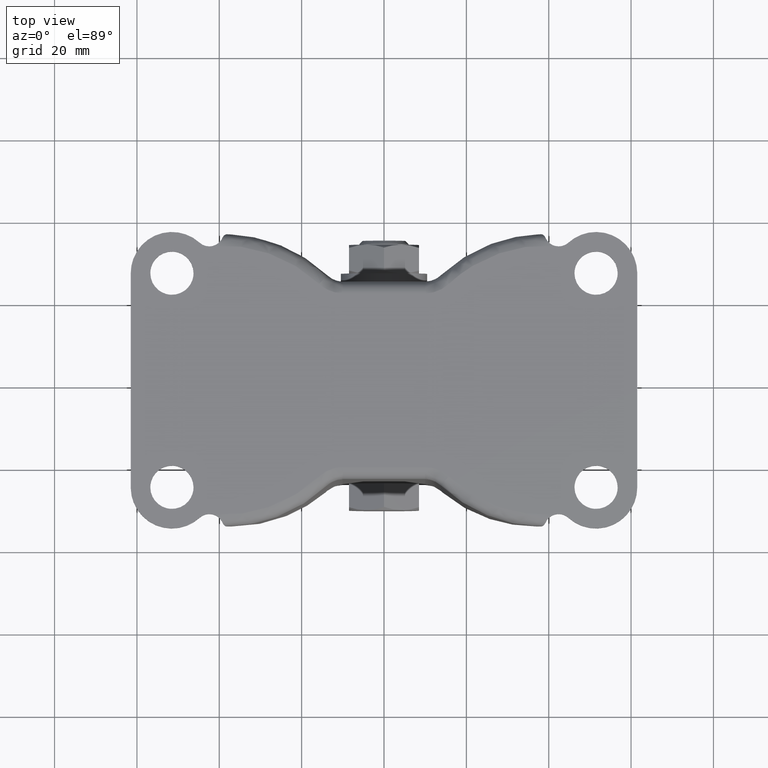
[diagram: clean part render]
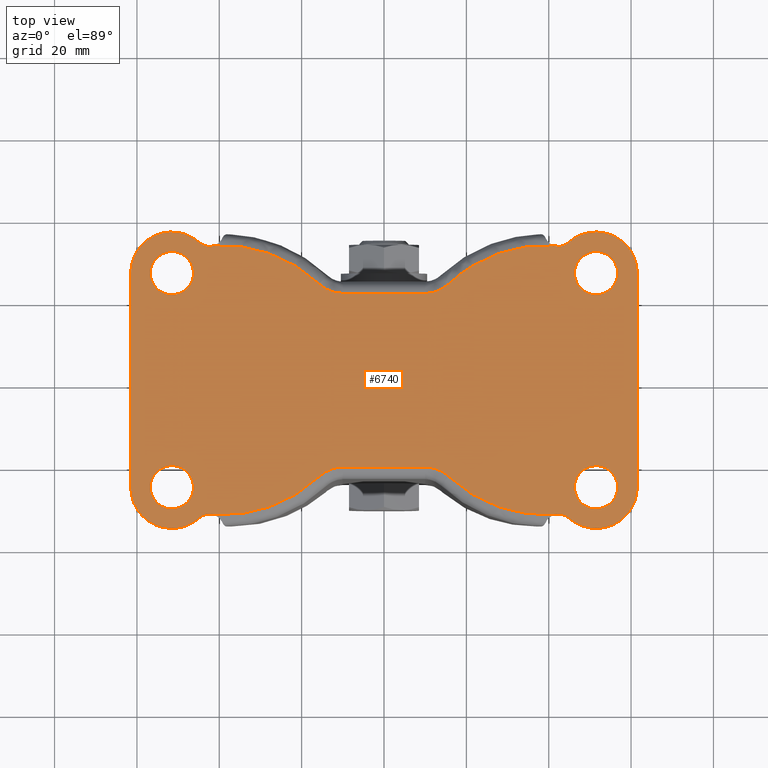
[diagram: same view with one face highlighted and labeled with its STEP entity id]
A machine part, top view. The second image highlights one B-rep face of the part: STEP entity #6740.
In plain terms, the highlighted face is a freeform B-spline surface patch.
Its self-contained STEP definition (entity closure, byte-faithful):
#2383=CARTESIAN_POINT('',(-51.820504832809867,20.759792308300600,1.318390E-016));
#2384=VERTEX_POINT('',#2383);
#2385=CARTESIAN_POINT('',(-46.250000000000000,26.0,0.0));
#2386=VERTEX_POINT('',#2385);
#2387=CARTESIAN_POINT('',(-51.820504832809881,20.759792308300604,0.0));
#2388=CARTESIAN_POINT('',(-51.660402007443885,20.749999999999996,0.0));
#2389=CARTESIAN_POINT('',(-51.500000000000000,20.750000000000000,0.0));
#2390=CARTESIAN_POINT('',(-46.249999999999993,20.750000000000000,0.0));
#2391=CARTESIAN_POINT('',(-46.250000000000000,26.0,0.0));
#2399=(BOUNDED_CURVE()B_SPLINE_CURVE(2,(#2387,#2388,#2389,#2390,#2391),.UNSPECIFIED.,.F.,.U.)B_SPLINE_CURVE_WITH_KNOTS((3,2,3),(0.239332962233675,0.250000000000000,0.500000000000000),.UNSPECIFIED.)CURVE()GEOMETRIC_REPRESENTATION_ITEM()RATIONAL_B_SPLINE_CURVE((0.976072041655427,0.987502787893665,1.0,0.707106781186547,1.0))REPRESENTATION_ITEM(''));
#2400=EDGE_CURVE('',#2384,#2386,#2399,.T.);
#2402=CARTESIAN_POINT('',(-51.179495167190133,31.240207691699400,1.318390E-016));
#2403=VERTEX_POINT('',#2402);
#2404=CARTESIAN_POINT('',(-46.250000000000000,26.0,0.0));
#2405=CARTESIAN_POINT('',(-46.250000000000000,30.938706851017070,0.0));
#2406=CARTESIAN_POINT('',(-51.179495167190126,31.240207691699403,0.0));
#2414=(BOUNDED_CURVE()B_SPLINE_CURVE(2,(#2404,#2405,#2406),.UNSPECIFIED.,.F.,.U.)B_SPLINE_CURVE_WITH_KNOTS((3,3),(0.500000000000000,0.739332962233675),.UNSPECIFIED.)CURVE()GEOMETRIC_REPRESENTATION_ITEM()RATIONAL_B_SPLINE_CURVE((1.0,0.719603993292882,0.976072041655427))REPRESENTATION_ITEM(''));
#2415=EDGE_CURVE('',#2386,#2403,#2414,.T.);
#2482=CARTESIAN_POINT('',(-56.749999999999993,26.0,0.0));
#2483=VERTEX_POINT('',#2482);
#2484=CARTESIAN_POINT('',(-56.749999999999993,26.0,0.0));
#2485=CARTESIAN_POINT('',(-56.749999999999979,21.061293148982934,0.0));
#2486=CARTESIAN_POINT('',(-51.820504832809881,20.759792308300604,0.0));
#2494=(BOUNDED_CURVE()B_SPLINE_CURVE(2,(#2484,#2485,#2486),.UNSPECIFIED.,.F.,.U.)B_SPLINE_CURVE_WITH_KNOTS((3,3),(0.0,0.239332962233675),.UNSPECIFIED.)CURVE()GEOMETRIC_REPRESENTATION_ITEM()RATIONAL_B_SPLINE_CURVE((1.0,0.719603993292882,0.976072041655427))REPRESENTATION_ITEM(''));
#2495=EDGE_CURVE('',#2483,#2384,#2494,.T.);
#2529=CARTESIAN_POINT('',(-51.179495167190140,31.240207691699403,0.0));
#2530=CARTESIAN_POINT('',(-51.339597992556122,31.250000000000000,0.0));
#2531=CARTESIAN_POINT('',(-51.500000000000000,31.250000000000000,0.0));
#2532=CARTESIAN_POINT('',(-56.749999999999993,31.250000000000004,0.0));
#2533=CARTESIAN_POINT('',(-56.749999999999993,26.0,0.0));
#2541=(BOUNDED_CURVE()B_SPLINE_CURVE(2,(#2529,#2530,#2531,#2532,#2533),.UNSPECIFIED.,.F.,.U.)B_SPLINE_CURVE_WITH_KNOTS((3,2,3),(0.739332962233675,0.750000000000000,1.0),.UNSPECIFIED.)CURVE()GEOMETRIC_REPRESENTATION_ITEM()RATIONAL_B_SPLINE_CURVE((0.976072041655427,0.987502787893665,1.0,0.707106781186547,1.0))REPRESENTATION_ITEM(''));
#2542=EDGE_CURVE('',#2403,#2483,#2541,.T.);
#2565=CARTESIAN_POINT('',(-51.820504832809867,-31.240207691699400,1.318390E-016));
#2566=VERTEX_POINT('',#2565);
#2567=CARTESIAN_POINT('',(-46.250000000000000,-26.0,0.0));
#2568=VERTEX_POINT('',#2567);
#2569=CARTESIAN_POINT('',(-51.820504832809867,-31.240207691699403,0.0));
#2570=CARTESIAN_POINT('',(-51.660402007443878,-31.250000000000000,0.0));
#2571=CARTESIAN_POINT('',(-51.500000000000000,-31.250000000000000,0.0));
#2572=CARTESIAN_POINT('',(-46.249999999999993,-31.250000000000004,0.0));
#2573=CARTESIAN_POINT('',(-46.250000000000000,-26.0,0.0));
#2581=(BOUNDED_CURVE()B_SPLINE_CURVE(2,(#2569,#2570,#2571,#2572,#2573),.UNSPECIFIED.,.F.,.U.)B_SPLINE_CURVE_WITH_KNOTS((3,2,3),(0.239332962233675,0.250000000000000,0.500000000000000),.UNSPECIFIED.)CURVE()GEOMETRIC_REPRESENTATION_ITEM()RATIONAL_B_SPLINE_CURVE((0.976072041655427,0.987502787893665,1.0,0.707106781186547,1.0))REPRESENTATION_ITEM(''));
#2582=EDGE_CURVE('',#2566,#2568,#2581,.T.);
#2584=CARTESIAN_POINT('',(-51.179495167190133,-20.759792308300600,1.318390E-016));
#2585=VERTEX_POINT('',#2584);
#2586=CARTESIAN_POINT('',(-46.250000000000000,-26.0,0.0));
#2587=CARTESIAN_POINT('',(-46.250000000000000,-21.061293148982930,0.0));
#2588=CARTESIAN_POINT('',(-51.179495167190126,-20.759792308300611,0.0));
#2596=(BOUNDED_CURVE()B_SPLINE_CURVE(2,(#2586,#2587,#2588),.UNSPECIFIED.,.F.,.U.)B_SPLINE_CURVE_WITH_KNOTS((3,3),(0.500000000000000,0.739332962233675),.UNSPECIFIED.)CURVE()GEOMETRIC_REPRESENTATION_ITEM()RATIONAL_B_SPLINE_CURVE((1.0,0.719603993292882,0.976072041655427))REPRESENTATION_ITEM(''));
#2597=EDGE_CURVE('',#2568,#2585,#2596,.T.);
#2664=CARTESIAN_POINT('',(-56.749999999999993,-26.0,0.0));
#2665=VERTEX_POINT('',#2664);
#2666=CARTESIAN_POINT('',(-56.749999999999993,-26.0,0.0));
#2667=CARTESIAN_POINT('',(-56.749999999999979,-30.938706851017077,0.0));
#2668=CARTESIAN_POINT('',(-51.820504832809867,-31.240207691699403,0.0));
#2676=(BOUNDED_CURVE()B_SPLINE_CURVE(2,(#2666,#2667,#2668),.UNSPECIFIED.,.F.,.U.)B_SPLINE_CURVE_WITH_KNOTS((3,3),(0.0,0.239332962233675),.UNSPECIFIED.)CURVE()GEOMETRIC_REPRESENTATION_ITEM()RATIONAL_B_SPLINE_CURVE((1.0,0.719603993292882,0.976072041655427))REPRESENTATION_ITEM(''));
#2677=EDGE_CURVE('',#2665,#2566,#2676,.T.);
#2711=CARTESIAN_POINT('',(-51.179495167190126,-20.759792308300611,0.0));
#2712=CARTESIAN_POINT('',(-51.339597992556115,-20.749999999999996,0.0));
#2713=CARTESIAN_POINT('',(-51.500000000000000,-20.750000000000000,0.0));
#2714=CARTESIAN_POINT('',(-56.749999999999993,-20.750000000000000,0.0));
#2715=CARTESIAN_POINT('',(-56.749999999999993,-26.0,0.0));
#2723=(BOUNDED_CURVE()B_SPLINE_CURVE(2,(#2711,#2712,#2713,#2714,#2715),.UNSPECIFIED.,.F.,.U.)B_SPLINE_CURVE_WITH_KNOTS((3,2,3),(0.739332962233675,0.750000000000000,1.0),.UNSPECIFIED.)CURVE()GEOMETRIC_REPRESENTATION_ITEM()RATIONAL_B_SPLINE_CURVE((0.976072041655427,0.987502787893665,1.0,0.707106781186547,1.0))REPRESENTATION_ITEM(''));
#2724=EDGE_CURVE('',#2585,#2665,#2723,.T.);
#2747=CARTESIAN_POINT('',(51.179495167190119,20.759792308300600,1.318390E-016));
#2748=VERTEX_POINT('',#2747);
#2749=CARTESIAN_POINT('',(56.749999999999993,26.0,0.0));
#2750=VERTEX_POINT('',#2749);
#2751=CARTESIAN_POINT('',(51.179495167190119,20.759792308300604,0.0));
#2752=CARTESIAN_POINT('',(51.339597992556115,20.750000000000004,0.0));
#2753=CARTESIAN_POINT('',(51.500000000000000,20.750000000000000,0.0));
#2754=CARTESIAN_POINT('',(56.749999999999993,20.750000000000000,0.0));
#2755=CARTESIAN_POINT('',(56.749999999999993,26.0,0.0));
#2763=(BOUNDED_CURVE()B_SPLINE_CURVE(2,(#2751,#2752,#2753,#2754,#2755),.UNSPECIFIED.,.F.,.U.)B_SPLINE_CURVE_WITH_KNOTS((3,2,3),(0.239332962233675,0.250000000000000,0.500000000000000),.UNSPECIFIED.)CURVE()GEOMETRIC_REPRESENTATION_ITEM()RATIONAL_B_SPLINE_CURVE((0.976072041655426,0.987502787893665,1.0,0.707106781186547,1.0))REPRESENTATION_ITEM(''));
#2764=EDGE_CURVE('',#2748,#2750,#2763,.T.);
#2766=CARTESIAN_POINT('',(51.820504832809867,31.240207691699400,1.318390E-016));
#2767=VERTEX_POINT('',#2766);
#2768=CARTESIAN_POINT('',(56.749999999999993,26.0,0.0));
#2769=CARTESIAN_POINT('',(56.749999999999972,30.938706851017070,0.0));
#2770=CARTESIAN_POINT('',(51.820504832809881,31.240207691699403,0.0));
#2778=(BOUNDED_CURVE()B_SPLINE_CURVE(2,(#2768,#2769,#2770),.UNSPECIFIED.,.F.,.U.)B_SPLINE_CURVE_WITH_KNOTS((3,3),(0.500000000000000,0.739332962233675),.UNSPECIFIED.)CURVE()GEOMETRIC_REPRESENTATION_ITEM()RATIONAL_B_SPLINE_CURVE((1.0,0.719603993292882,0.976072041655427))REPRESENTATION_ITEM(''));
#2779=EDGE_CURVE('',#2750,#2767,#2778,.T.);
#2846=CARTESIAN_POINT('',(46.250000000000000,26.0,0.0));
#2847=VERTEX_POINT('',#2846);
#2848=CARTESIAN_POINT('',(46.250000000000000,26.0,0.0));
#2849=CARTESIAN_POINT('',(46.250000000000000,21.061293148982930,0.0));
#2850=CARTESIAN_POINT('',(51.179495167190133,20.759792308300600,0.0));
#2858=(BOUNDED_CURVE()B_SPLINE_CURVE(2,(#2848,#2849,#2850),.UNSPECIFIED.,.F.,.U.)B_SPLINE_CURVE_WITH_KNOTS((3,3),(0.0,0.239332962233675),.UNSPECIFIED.)CURVE()GEOMETRIC_REPRESENTATION_ITEM()RATIONAL_B_SPLINE_CURVE((1.0,0.719603993292882,0.976072041655427))REPRESENTATION_ITEM(''));
#2859=EDGE_CURVE('',#2847,#2748,#2858,.T.);
#2893=CARTESIAN_POINT('',(51.820504832809867,31.240207691699403,0.0));
#2894=CARTESIAN_POINT('',(51.660402007443878,31.250000000000000,0.0));
#2895=CARTESIAN_POINT('',(51.500000000000000,31.250000000000000,0.0));
#2896=CARTESIAN_POINT('',(46.249999999999993,31.250000000000004,0.0));
#2897=CARTESIAN_POINT('',(46.250000000000000,26.0,0.0));
#2905=(BOUNDED_CURVE()B_SPLINE_CURVE(2,(#2893,#2894,#2895,#2896,#2897),.UNSPECIFIED.,.F.,.U.)B_SPLINE_CURVE_WITH_KNOTS((3,2,3),(0.739332962233675,0.750000000000000,1.0),.UNSPECIFIED.)CURVE()GEOMETRIC_REPRESENTATION_ITEM()RATIONAL_B_SPLINE_CURVE((0.976072041655427,0.987502787893665,1.0,0.707106781186547,1.0))REPRESENTATION_ITEM(''));
#2906=EDGE_CURVE('',#2767,#2847,#2905,.T.);
#2929=CARTESIAN_POINT('',(51.179495167190119,-31.240207691699400,1.318390E-016));
#2930=VERTEX_POINT('',#2929);
#2931=CARTESIAN_POINT('',(56.749999999999993,-26.0,0.0));
#2932=VERTEX_POINT('',#2931);
#2933=CARTESIAN_POINT('',(51.179495167190140,-31.240207691699400,0.0));
#2934=CARTESIAN_POINT('',(51.339597992556122,-31.249999999999996,0.0));
#2935=CARTESIAN_POINT('',(51.500000000000000,-31.250000000000000,0.0));
#2936=CARTESIAN_POINT('',(56.749999999999993,-31.250000000000004,0.0));
#2937=CARTESIAN_POINT('',(56.749999999999993,-26.0,0.0));
#2945=(BOUNDED_CURVE()B_SPLINE_CURVE(2,(#2933,#2934,#2935,#2936,#2937),.UNSPECIFIED.,.F.,.U.)B_SPLINE_CURVE_WITH_KNOTS((3,2,3),(0.239332962233675,0.250000000000000,0.500000000000000),.UNSPECIFIED.)CURVE()GEOMETRIC_REPRESENTATION_ITEM()RATIONAL_B_SPLINE_CURVE((0.976072041655426,0.987502787893665,1.0,0.707106781186547,1.0))REPRESENTATION_ITEM(''));
#2946=EDGE_CURVE('',#2930,#2932,#2945,.T.);
#2948=CARTESIAN_POINT('',(51.820504832809867,-20.759792308300600,1.318390E-016));
#2949=VERTEX_POINT('',#2948);
#2950=CARTESIAN_POINT('',(56.749999999999993,-26.0,0.0));
#2951=CARTESIAN_POINT('',(56.749999999999972,-21.061293148982930,0.0));
#2952=CARTESIAN_POINT('',(51.820504832809881,-20.759792308300611,0.0));
#2960=(BOUNDED_CURVE()B_SPLINE_CURVE(2,(#2950,#2951,#2952),.UNSPECIFIED.,.F.,.U.)B_SPLINE_CURVE_WITH_KNOTS((3,3),(0.500000000000000,0.739332962233675),.UNSPECIFIED.)CURVE()GEOMETRIC_REPRESENTATION_ITEM()RATIONAL_B_SPLINE_CURVE((1.0,0.719603993292882,0.976072041655427))REPRESENTATION_ITEM(''));
#2961=EDGE_CURVE('',#2932,#2949,#2960,.T.);
#3028=CARTESIAN_POINT('',(46.250000000000000,-26.0,0.0));
#3029=VERTEX_POINT('',#3028);
#3030=CARTESIAN_POINT('',(46.250000000000000,-26.0,0.0));
#3031=CARTESIAN_POINT('',(46.250000000000000,-30.938706851017066,0.0));
#3032=CARTESIAN_POINT('',(51.179495167190140,-31.240207691699400,0.0));
#3040=(BOUNDED_CURVE()B_SPLINE_CURVE(2,(#3030,#3031,#3032),.UNSPECIFIED.,.F.,.U.)B_SPLINE_CURVE_WITH_KNOTS((3,3),(0.0,0.239332962233675),.UNSPECIFIED.)CURVE()GEOMETRIC_REPRESENTATION_ITEM()RATIONAL_B_SPLINE_CURVE((1.0,0.719603993292882,0.976072041655426))REPRESENTATION_ITEM(''));
#3041=EDGE_CURVE('',#3029,#2930,#3040,.T.);
#3075=CARTESIAN_POINT('',(51.820504832809867,-20.759792308300604,0.0));
#3076=CARTESIAN_POINT('',(51.660402007443878,-20.749999999999996,0.0));
#3077=CARTESIAN_POINT('',(51.500000000000000,-20.750000000000000,0.0));
#3078=CARTESIAN_POINT('',(46.249999999999993,-20.750000000000000,0.0));
#3079=CARTESIAN_POINT('',(46.250000000000000,-26.0,0.0));
#3087=(BOUNDED_CURVE()B_SPLINE_CURVE(2,(#3075,#3076,#3077,#3078,#3079),.UNSPECIFIED.,.F.,.U.)B_SPLINE_CURVE_WITH_KNOTS((3,2,3),(0.739332962233675,0.750000000000000,1.0),.UNSPECIFIED.)CURVE()GEOMETRIC_REPRESENTATION_ITEM()RATIONAL_B_SPLINE_CURVE((0.976072041655427,0.987502787893665,1.0,0.707106781186547,1.0))REPRESENTATION_ITEM(''));
#3088=EDGE_CURVE('',#2949,#3029,#3087,.T.);
#4068=CARTESIAN_POINT('',(-61.500000000000000,-26.0,0.0));
#4069=VERTEX_POINT('',#4068);
#4070=CARTESIAN_POINT('',(-44.782090500815002,-33.407407390839403,0.0));
#4071=VERTEX_POINT('',#4070);
#4072=CARTESIAN_POINT('',(-61.500000000000000,-26.0,0.0));
#4073=CARTESIAN_POINT('',(-61.500398466991641,-26.991521464954801,0.0));
#4074=CARTESIAN_POINT('',(-61.274743914934170,-28.493468587668609,0.0));
#4075=CARTESIAN_POINT('',(-60.525822072085901,-30.400790700698220,0.0));
#4076=CARTESIAN_POINT('',(-59.822728471220032,-31.595904799884519,0.0));
#4077=CARTESIAN_POINT('',(-58.879134221229911,-32.805586696100157,0.0));
#4078=CARTESIAN_POINT('',(-57.784470126972572,-33.845139797911052,0.0));
#4079=CARTESIAN_POINT('',(-56.301119822848342,-34.825117580906010,0.0));
#4080=CARTESIAN_POINT('',(-54.922100953797347,-35.436105818748651,0.0));
#4081=CARTESIAN_POINT('',(-53.268044072261212,-35.891039993520792,0.0));
#4082=CARTESIAN_POINT('',(-51.614493909470987,-36.059674033107143,0.0));
#4083=CARTESIAN_POINT('',(-49.572525274457547,-35.880203071400317,0.0));
#4084=CARTESIAN_POINT('',(-47.831163044045489,-35.368292805564863,0.0));
#4085=CARTESIAN_POINT('',(-46.143780749048162,-34.499803943779263,0.0));
#4086=CARTESIAN_POINT('',(-45.249391280311841,-33.831308928272414,0.0));
#4087=CARTESIAN_POINT('',(-44.782090500815002,-33.407407390839403,0.0));
#4088=B_SPLINE_CURVE_WITH_KNOTS('',3,(#4072,#4073,#4074,#4075,#4076,#4077,#4078,#4079,#4080,#4081,#4082,#4083,#4084,#4085,#4086,#4087),.UNSPECIFIED.,.F.,.U.,(4,1,1,1,1,1,1,1,1,1,1,1,1,4),(0.000000072688191,2.974409539399606,4.506680842081142,6.129109343518056,7.120597783297692,9.103528682393405,10.635864247580891,12.438421431263830,13.610171432831590,15.773432334682820,17.395846362430600,19.739358620826511,21.181520612456019,23.074280991551731),.UNSPECIFIED.);
#4089=EDGE_CURVE('',#4069,#4071,#4088,.T.);
#4184=CARTESIAN_POINT('',(-41.530390479089498,-32.617807948068247,0.0));
#4185=VERTEX_POINT('',#4184);
#4200=CARTESIAN_POINT('',(-41.530390479089469,-32.617807948068148,0.0));
#4201=CARTESIAN_POINT('',(-43.371105181389041,-32.127759626297944,0.0));
#4202=CARTESIAN_POINT('',(-44.782090500815052,-33.407407390839339,0.0));
#4210=(BOUNDED_CURVE()B_SPLINE_CURVE(2,(#4200,#4201,#4202),.UNSPECIFIED.,.F.,.U.)CURVE()GEOMETRIC_REPRESENTATION_ITEM()QUASI_UNIFORM_CURVE()RATIONAL_B_SPLINE_CURVE((1.0,0.878344682571564,1.0))REPRESENTATION_ITEM(''));
#4211=EDGE_CURVE('',#4185,#4071,#4210,.T.);
#4235=CARTESIAN_POINT('',(-44.782089997670951,33.407407454744998,0.0));
#4236=VERTEX_POINT('',#4235);
#4237=CARTESIAN_POINT('',(-61.500000000000000,26.0,0.0));
#4238=VERTEX_POINT('',#4237);
#4239=CARTESIAN_POINT('',(-44.782089997670951,33.407407454744998,0.0));
#4240=CARTESIAN_POINT('',(-45.405083122775373,33.972759740858919,0.0));
#4241=CARTESIAN_POINT('',(-46.546795683425870,34.770904828055258,0.0));
#4242=CARTESIAN_POINT('',(-48.432246184779338,35.575074712582762,0.0));
#4243=CARTESIAN_POINT('',(-50.140102571989289,35.962114730231761,0.0));
#4244=CARTESIAN_POINT('',(-51.826639198604738,36.033944633906380,0.0));
#4245=CARTESIAN_POINT('',(-53.203812665395709,35.880933207224132,0.0));
#4246=CARTESIAN_POINT('',(-54.519981838451720,35.563246633610547,0.0));
#4247=CARTESIAN_POINT('',(-56.066703810751910,34.967972435864489,0.0));
#4248=CARTESIAN_POINT('',(-57.475183742917302,34.082347561688728,0.0));
#4249=CARTESIAN_POINT('',(-58.660712729828177,33.015742099594583,0.0));
#4250=CARTESIAN_POINT('',(-59.511210380519863,32.039347686287933,0.0));
#4251=CARTESIAN_POINT('',(-60.234054311130038,30.928400481849280,0.0));
#4252=CARTESIAN_POINT('',(-60.883455838687283,29.570910358795921,0.0));
#4253=CARTESIAN_POINT('',(-61.371445362180182,27.952863843189711,0.0));
#4254=CARTESIAN_POINT('',(-61.500086933350786,26.660979945030729,0.0));
#4255=CARTESIAN_POINT('',(-61.500000000000000,26.0,0.0));
#4256=B_SPLINE_CURVE_WITH_KNOTS('',3,(#4239,#4240,#4241,#4242,#4243,#4244,#4245,#4246,#4247,#4248,#4249,#4250,#4251,#4252,#4253,#4254,#4255),.UNSPECIFIED.,.F.,.U.,(4,1,1,1,1,1,1,1,1,1,1,1,1,1,4),(0.000000219927067,2.523741394084517,4.146154616843734,6.129109539009477,7.751530753906604,9.193705739910952,10.275282094356189,11.807524255209120,14.151010093106530,15.232606239752100,16.584631215615168,18.026787005913899,19.198528070599810,21.091351935422072,23.074281322189979),.UNSPECIFIED.);
#4257=EDGE_CURVE('',#4236,#4238,#4256,.T.);
#4301=CARTESIAN_POINT('',(-61.500000000000000,-26.0,0.0));
#4302=CARTESIAN_POINT('',(-61.500000000000000,26.0,0.0));
#4303=QUASI_UNIFORM_CURVE('',1,(#4301,#4302),.UNSPECIFIED.,.F.,.U.);
#4304=EDGE_CURVE('',#4069,#4238,#4303,.T.);
#5812=CARTESIAN_POINT('',(41.530389155085253,-32.617808034327098,0.0));
#5813=VERTEX_POINT('',#5812);
#5833=CARTESIAN_POINT('',(15.730752308236500,-23.383727355105648,0.0));
#5834=VERTEX_POINT('',#5833);
#5835=CARTESIAN_POINT('',(15.730752308236500,-23.383727355105648,0.0));
#5836=CARTESIAN_POINT('',(16.799843822609130,-24.390382765702299,0.0));
#5837=CARTESIAN_POINT('',(18.614544225718181,-25.890409100712549,0.0));
#5838=CARTESIAN_POINT('',(21.060326051722601,-27.520154236470599,0.0));
#5839=CARTESIAN_POINT('',(23.094229175185252,-28.697856310960219,0.0));
#5840=CARTESIAN_POINT('',(26.187500037835751,-30.233218086341161,0.0));
#5841=CARTESIAN_POINT('',(30.085741357896890,-31.589745266251100,0.0));
#5842=CARTESIAN_POINT('',(34.344981564324343,-32.414779185129468,0.0));
#5843=CARTESIAN_POINT('',(37.932346979242467,-32.737423035625291,0.0));
#5844=CARTESIAN_POINT('',(40.285203074955760,-32.704066679099199,0.0));
#5845=CARTESIAN_POINT('',(41.530389155085253,-32.617808034327098,0.0));
#5846=B_SPLINE_CURVE_WITH_KNOTS('',3,(#5835,#5836,#5837,#5838,#5839,#5840,#5841,#5842,#5843,#5844,#5845),.UNSPECIFIED.,.F.,.U.,(4,1,1,1,1,1,1,1,4),(0.000000043887653,4.405318912073632,7.048534141867084,8.810685139440114,11.453862682230060,17.401052557683389,21.145595819056531,24.449594201482491,28.194121215169840),.UNSPECIFIED.);
#5847=EDGE_CURVE('',#5834,#5813,#5846,.T.);
#5882=CARTESIAN_POINT('',(9.973044181806790,-21.100000000000001,0.0));
#5883=VERTEX_POINT('',#5882);
#5899=CARTESIAN_POINT('',(9.973044181806790,-21.100000000000019,0.0));
#5900=CARTESIAN_POINT('',(13.304804988808460,-21.100000208874643,0.0));
#5901=CARTESIAN_POINT('',(15.730752308236500,-23.383727355105648,0.0));
#5909=(BOUNDED_CURVE()B_SPLINE_CURVE(2,(#5899,#5900,#5901),.UNSPECIFIED.,.F.,.U.)CURVE()GEOMETRIC_REPRESENTATION_ITEM()QUASI_UNIFORM_CURVE()RATIONAL_B_SPLINE_CURVE((1.0,0.929550358719856,1.0))REPRESENTATION_ITEM(''));
#5910=EDGE_CURVE('',#5883,#5834,#5909,.T.);
#5929=CARTESIAN_POINT('',(-9.973043655194140,-21.100000000000001,0.0));
#5930=VERTEX_POINT('',#5929);
#5946=CARTESIAN_POINT('',(-9.973043655194140,-21.100000000000001,0.0));
#5947=CARTESIAN_POINT('',(9.973044181806790,-21.100000000000001,0.0));
#5948=QUASI_UNIFORM_CURVE('',1,(#5946,#5947),.UNSPECIFIED.,.F.,.U.);
#5949=EDGE_CURVE('',#5930,#5883,#5948,.T.);
#5971=CARTESIAN_POINT('',(-15.730752308236349,-23.383727355105648,0.0));
#5972=VERTEX_POINT('',#5971);
#5988=CARTESIAN_POINT('',(-15.730752308236340,-23.383727355105659,0.0));
#5989=CARTESIAN_POINT('',(-13.304804766925892,-21.099999999999998,0.0));
#5990=CARTESIAN_POINT('',(-9.973043655194129,-21.100000000000001,0.0));
#5998=(BOUNDED_CURVE()B_SPLINE_CURVE(2,(#5988,#5989,#5990),.UNSPECIFIED.,.F.,.U.)CURVE()GEOMETRIC_REPRESENTATION_ITEM()QUASI_UNIFORM_CURVE()RATIONAL_B_SPLINE_CURVE((1.0,0.929550347162744,1.0))REPRESENTATION_ITEM(''));
#5999=EDGE_CURVE('',#5972,#5930,#5998,.T.);
#6046=CARTESIAN_POINT('',(-41.530390479089498,-32.617807948068247,0.0));
#6047=CARTESIAN_POINT('',(-40.431700804004556,-32.693869317411917,0.0));
#6048=CARTESIAN_POINT('',(-38.079870488776827,-32.742541898362781,0.0));
#6049=CARTESIAN_POINT('',(-34.855714120558162,-32.473312372224711,0.0));
#6050=CARTESIAN_POINT('',(-31.744725405660930,-31.921961716906068,0.0));
#6051=CARTESIAN_POINT('',(-29.400681142383291,-31.298791897911268,0.0));
#6052=CARTESIAN_POINT('',(-26.967528082099449,-30.470038827379071,0.0));
#6053=CARTESIAN_POINT('',(-24.390729492913358,-29.392744956784831,0.0));
#6054=CARTESIAN_POINT('',(-21.287227099216519,-27.711882657406409,0.0));
#6055=CARTESIAN_POINT('',(-18.321044165889120,-25.666717094559260,0.0));
#6056=CARTESIAN_POINT('',(-16.532632683720131,-24.138633463202300,0.0));
#6057=CARTESIAN_POINT('',(-15.730752308236349,-23.383727355105648,0.0));
#6058=B_SPLINE_CURVE_WITH_KNOTS('',3,(#6046,#6047,#6048,#6049,#6050,#6051,#6052,#6053,#6054,#6055,#6056,#6057),.UNSPECIFIED.,.F.,.U.,(4,1,1,1,1,1,1,1,1,4),(0.000000988137785,3.303996131079181,7.048526358527550,9.691744083334150,12.775459702739459,14.317340132755920,17.401055455931019,21.145588133995169,24.890127919710160,28.194122464699770),.UNSPECIFIED.);
#6059=EDGE_CURVE('',#4185,#5972,#6058,.T.);
#6104=CARTESIAN_POINT('',(41.530389135318650,32.617808039589498,0.0));
#6105=VERTEX_POINT('',#6104);
#6169=CARTESIAN_POINT('',(15.730752308236500,23.383727355105648,0.0));
#6170=VERTEX_POINT('',#6169);
#6184=CARTESIAN_POINT('',(41.530389135318650,32.617808039589498,0.0));
#6185=CARTESIAN_POINT('',(40.431698463770132,32.693875858158911,0.0));
#6186=CARTESIAN_POINT('',(38.079877947086892,32.742539708942552,0.0));
#6187=CARTESIAN_POINT('',(35.148799743707720,32.497765433841629,0.0));
#6188=CARTESIAN_POINT('',(32.177291346499644,32.010084188221207,0.0));
#6189=CARTESIAN_POINT('',(29.820742156053910,31.432840870679879,0.0));
#6190=CARTESIAN_POINT('',(26.824384953872041,30.433887287246801,0.0));
#6191=CARTESIAN_POINT('',(24.125178344063428,29.263904934157178,0.0));
#6192=CARTESIAN_POINT('',(21.045149835110450,27.544899388029570,0.0));
#6193=CARTESIAN_POINT('',(18.321019677262271,25.666722737114469,0.0));
#6194=CARTESIAN_POINT('',(16.532637235135471,24.138632347101549,0.0));
#6195=CARTESIAN_POINT('',(15.730752308236500,23.383727355105648,0.0));
#6196=B_SPLINE_CURVE_WITH_KNOTS('',3,(#6184,#6185,#6186,#6187,#6188,#6189,#6190,#6191,#6192,#6193,#6194,#6195),.UNSPECIFIED.,.F.,.U.,(4,1,1,1,1,1,1,1,1,4),(0.000000988134509,3.303995973178765,7.048526021676921,8.810685733212402,12.334923125439749,14.317339448525569,18.282110873377110,21.145587123443800,24.890126730204909,28.194121117296181),.UNSPECIFIED.);
#6197=EDGE_CURVE('',#6105,#6170,#6196,.T.);
#6221=CARTESIAN_POINT('',(9.973043655194299,21.100000000000001,0.0));
#6222=VERTEX_POINT('',#6221);
#6236=CARTESIAN_POINT('',(15.730752308236500,23.383727355105648,0.0));
#6237=CARTESIAN_POINT('',(13.304804766926058,21.100000000000001,0.0));
#6238=CARTESIAN_POINT('',(9.973043655194299,21.100000000000001,0.0));
#6246=(BOUNDED_CURVE()B_SPLINE_CURVE(2,(#6236,#6237,#6238),.UNSPECIFIED.,.F.,.U.)CURVE()GEOMETRIC_REPRESENTATION_ITEM()QUASI_UNIFORM_CURVE()RATIONAL_B_SPLINE_CURVE((1.0,0.929550347162744,1.0))REPRESENTATION_ITEM(''));
#6247=EDGE_CURVE('',#6170,#6222,#6246,.T.);
#6282=CARTESIAN_POINT('',(-9.973044181806579,21.100000000000001,0.0));
#6283=VERTEX_POINT('',#6282);
#6297=CARTESIAN_POINT('',(9.973043655194299,21.100000000000001,0.0));
#6298=CARTESIAN_POINT('',(-9.973044181806579,21.100000000000001,0.0));
#6299=QUASI_UNIFORM_CURVE('',1,(#6297,#6298),.UNSPECIFIED.,.F.,.U.);
#6300=EDGE_CURVE('',#6222,#6283,#6299,.T.);
#6330=CARTESIAN_POINT('',(-15.730752308236349,23.383727355105648,0.0));
#6331=VERTEX_POINT('',#6330);
#6345=CARTESIAN_POINT('',(-9.973044181806577,21.100000000000019,0.0));
#6346=CARTESIAN_POINT('',(-13.304804988808282,21.100000208874626,0.0));
#6347=CARTESIAN_POINT('',(-15.730752308236340,23.383727355105648,0.0));
#6355=(BOUNDED_CURVE()B_SPLINE_CURVE(2,(#6345,#6346,#6347),.UNSPECIFIED.,.F.,.U.)CURVE()GEOMETRIC_REPRESENTATION_ITEM()QUASI_UNIFORM_CURVE()RATIONAL_B_SPLINE_CURVE((1.0,0.929550358719855,1.0))REPRESENTATION_ITEM(''));
#6356=EDGE_CURVE('',#6283,#6331,#6355,.T.);
#6489=CARTESIAN_POINT('',(-41.530390510604349,32.617807939678137,0.0));
#6490=VERTEX_POINT('',#6489);
#6510=CARTESIAN_POINT('',(-15.730752308236349,23.383727355105648,0.0));
#6511=CARTESIAN_POINT('',(-16.799831587859899,24.390394072582151,0.0));
#6512=CARTESIAN_POINT('',(-18.614583577269510,25.890373120417220,0.0));
#6513=CARTESIAN_POINT('',(-21.549395301626848,27.846172731487741,0.0));
#6514=CARTESIAN_POINT('',(-24.324334361513738,29.360563908874891,0.0));
#6515=CARTESIAN_POINT('',(-26.965751317147539,30.474898858567631,0.0));
#6516=CARTESIAN_POINT('',(-29.680128090262428,31.389820577777090,0.0));
#6517=CARTESIAN_POINT('',(-32.032894880195563,31.982297601818729,0.0));
#6518=CARTESIAN_POINT('',(-34.640895688701853,32.418799860219089,0.0));
#6519=CARTESIAN_POINT('',(-37.637263017452163,32.727058072153838,0.0));
#6520=CARTESIAN_POINT('',(-39.992219720706977,32.724470866796963,0.0));
#6521=CARTESIAN_POINT('',(-41.530390510604349,32.617807939678137,0.0));
#6522=B_SPLINE_CURVE_WITH_KNOTS('',3,(#6510,#6511,#6512,#6513,#6514,#6515,#6516,#6517,#6518,#6519,#6520,#6521),.UNSPECIFIED.,.F.,.U.,(4,1,1,1,1,1,1,1,1,4),(0.000000043882892,4.405319124337620,7.048534481496724,10.572796372450680,13.876781849153611,15.638932013587469,19.163176447922488,21.145596837951580,23.568527726760930,28.194122573694461),.UNSPECIFIED.);
#6523=EDGE_CURVE('',#6331,#6490,#6522,.T.);
#6606=CARTESIAN_POINT('',(-67.643849761602141,39.590585271803597,0.0));
#6607=CARTESIAN_POINT('',(67.643853060719209,39.590585271803597,0.0));
#6608=CARTESIAN_POINT('',(-67.643849761602141,-39.590586558911497,0.0));
#6609=CARTESIAN_POINT('',(67.643853060719209,-39.590586558911497,0.0));
#6610=B_SPLINE_SURFACE_WITH_KNOTS('',1,1,((#6606,#6608),(#6607,#6609)),.UNSPECIFIED.,.F.,.F.,.U.,(2,2),(2,2),(0.0,135.287702822321390),(0.0,79.181171830715101),.UNSPECIFIED.);
#6611=CARTESIAN_POINT('',(44.782089500815303,33.407407390839403,0.0));
#6612=VERTEX_POINT('',#6611);
#6613=CARTESIAN_POINT('',(41.530389135318650,32.617808039589498,0.0));
#6614=CARTESIAN_POINT('',(43.371104010605990,32.127759471411480,0.0));
#6615=CARTESIAN_POINT('',(44.782089500815353,33.407407390839332,0.0));
#6623=(BOUNDED_CURVE()B_SPLINE_CURVE(2,(#6613,#6614,#6615),.UNSPECIFIED.,.F.,.U.)CURVE()GEOMETRIC_REPRESENTATION_ITEM()QUASI_UNIFORM_CURVE()RATIONAL_B_SPLINE_CURVE((1.0,0.878344658277824,1.0))REPRESENTATION_ITEM(''));
#6624=EDGE_CURVE('',#6105,#6612,#6623,.T.);
#6625=ORIENTED_EDGE('',*,*,#6624,.F.);
#6626=ORIENTED_EDGE('',*,*,#6197,.T.);
#6627=ORIENTED_EDGE('',*,*,#6247,.T.);
#6628=ORIENTED_EDGE('',*,*,#6300,.T.);
#6629=ORIENTED_EDGE('',*,*,#6356,.T.);
#6630=ORIENTED_EDGE('',*,*,#6523,.T.);
#6631=CARTESIAN_POINT('',(-44.782089997670951,33.407407454744998,0.0));
#6632=CARTESIAN_POINT('',(-43.371104990517395,32.127759695480350,0.0));
#6633=CARTESIAN_POINT('',(-41.530390510604320,32.617807939678052,0.0));
#6641=(BOUNDED_CURVE()B_SPLINE_CURVE(2,(#6631,#6632,#6633),.UNSPECIFIED.,.F.,.U.)CURVE()GEOMETRIC_REPRESENTATION_ITEM()QUASI_UNIFORM_CURVE()RATIONAL_B_SPLINE_CURVE((1.0,0.878344707318429,1.0))REPRESENTATION_ITEM(''));
#6642=EDGE_CURVE('',#4236,#6490,#6641,.T.);
#6643=ORIENTED_EDGE('',*,*,#6642,.F.);
#6644=ORIENTED_EDGE('',*,*,#4257,.T.);
#6645=ORIENTED_EDGE('',*,*,#4304,.F.);
#6646=ORIENTED_EDGE('',*,*,#4089,.T.);
#6647=ORIENTED_EDGE('',*,*,#4211,.F.);
#6648=ORIENTED_EDGE('',*,*,#6059,.T.);
#6649=ORIENTED_EDGE('',*,*,#5999,.T.);
#6650=ORIENTED_EDGE('',*,*,#5949,.T.);
#6651=ORIENTED_EDGE('',*,*,#5910,.T.);
#6652=ORIENTED_EDGE('',*,*,#5847,.T.);
#6653=CARTESIAN_POINT('',(44.782089997671306,-33.407407454744998,0.0));
#6654=VERTEX_POINT('',#6653);
#6655=CARTESIAN_POINT('',(44.782089997671306,-33.407407454744998,0.0));
#6656=CARTESIAN_POINT('',(43.371104277810922,-32.127759411794415,0.0));
#6657=CARTESIAN_POINT('',(41.530389155085217,-32.617808034326998,0.0));
#6665=(BOUNDED_CURVE()B_SPLINE_CURVE(2,(#6655,#6656,#6657),.UNSPECIFIED.,.F.,.U.)CURVE()GEOMETRIC_REPRESENTATION_ITEM()QUASI_UNIFORM_CURVE()RATIONAL_B_SPLINE_CURVE((1.0,0.878344631609496,1.0))REPRESENTATION_ITEM(''));
#6666=EDGE_CURVE('',#6654,#5813,#6665,.T.);
#6667=ORIENTED_EDGE('',*,*,#6666,.F.);
#6668=CARTESIAN_POINT('',(61.500000000000000,-26.0,0.0));
#6669=VERTEX_POINT('',#6668);
#6670=CARTESIAN_POINT('',(44.782089997671306,-33.407407454744998,0.0));
#6671=CARTESIAN_POINT('',(45.516262545928917,-34.073824133124504,0.0));
#6672=CARTESIAN_POINT('',(46.805732026698472,-34.932469969837037,0.0));
#6673=CARTESIAN_POINT('',(48.612674329105843,-35.608389367810233,0.0));
#6674=CARTESIAN_POINT('',(50.081746201846180,-35.934404199784787,0.0));
#6675=CARTESIAN_POINT('',(51.434978034539647,-36.034921886112187,0.0));
#6676=CARTESIAN_POINT('',(53.056211448094743,-35.921133851351939,0.0));
#6677=CARTESIAN_POINT('',(54.850422034969228,-35.505370252559572,0.0));
#6678=CARTESIAN_POINT('',(56.571268721879790,-34.686395593826383,0.0));
#6679=CARTESIAN_POINT('',(58.202900941497568,-33.499580526473302,0.0));
#6680=CARTESIAN_POINT('',(59.532680737961833,-32.092425739148347,0.0));
#6681=CARTESIAN_POINT('',(60.582123783139807,-30.326680304936851,0.0));
#6682=CARTESIAN_POINT('',(61.310250245648490,-28.313279496744968,0.0));
#6683=CARTESIAN_POINT('',(61.500274546878728,-26.871310217856490,0.0));
#6684=CARTESIAN_POINT('',(61.500000000000000,-26.0,0.0));
#6685=B_SPLINE_CURVE_WITH_KNOTS('',3,(#6670,#6671,#6672,#6673,#6674,#6675,#6676,#6677,#6678,#6679,#6680,#6681,#6682,#6683,#6684),.UNSPECIFIED.,.F.,.U.,(4,1,1,1,1,1,1,1,1,1,1,1,4),(0.000000220128140,2.974409710226869,4.596825973534173,5.768571679265214,7.481123256982272,8.652867637137859,10.635864478663560,12.979260745294450,14.331257523520449,16.674774084295969,18.747860464471540,20.460441059032888,23.074281322188948),.UNSPECIFIED.);
#6686=EDGE_CURVE('',#6654,#6669,#6685,.T.);
#6687=ORIENTED_EDGE('',*,*,#6686,.T.);
#6688=CARTESIAN_POINT('',(61.500000000000000,26.0,0.0));
#6689=VERTEX_POINT('',#6688);
#6690=CARTESIAN_POINT('',(61.500000000000000,26.0,0.0));
#6691=CARTESIAN_POINT('',(61.500000000000000,-26.0,0.0));
#6692=QUASI_UNIFORM_CURVE('',1,(#6690,#6691),.UNSPECIFIED.,.F.,.U.);
#6693=EDGE_CURVE('',#6689,#6669,#6692,.T.);
#6694=ORIENTED_EDGE('',*,*,#6693,.F.);
#6695=CARTESIAN_POINT('',(61.500000000000000,26.0,0.0));
#6696=CARTESIAN_POINT('',(61.500088761771053,26.691024039347710,0.0));
#6697=CARTESIAN_POINT('',(61.340624713614233,28.223292357812269,0.0));
#6698=CARTESIAN_POINT('',(60.656786234411094,30.197807406157370,0.0));
#6699=CARTESIAN_POINT('',(59.725347332607143,31.748202416983521,0.0));
#6700=CARTESIAN_POINT('',(58.677864321791859,33.030489926082829,0.0));
#6701=CARTESIAN_POINT('',(57.359639382372713,34.184494377053241,0.0));
#6702=CARTESIAN_POINT('',(55.788853772198827,35.085280872331467,0.0));
#6703=CARTESIAN_POINT('',(54.206574841310868,35.670017881899852,0.0));
#6704=CARTESIAN_POINT('',(52.491194273598552,36.011144355088391,0.0));
#6705=CARTESIAN_POINT('',(50.769471541845817,36.023155151370339,0.0));
#6706=CARTESIAN_POINT('',(49.105821778171041,35.747298221199877,0.0));
#6707=CARTESIAN_POINT('',(47.671850217588002,35.283237668796069,0.0));
#6708=CARTESIAN_POINT('',(46.167950859544028,34.517908071220823,0.0));
#6709=CARTESIAN_POINT('',(45.249390910914457,33.831308094842612,0.0));
#6710=CARTESIAN_POINT('',(44.782089500815303,33.407407390839403,0.0));
#6711=B_SPLINE_CURVE_WITH_KNOTS('',3,(#6695,#6696,#6697,#6698,#6699,#6700,#6701,#6702,#6703,#6704,#6705,#6706,#6707,#6708,#6709,#6710),.UNSPECIFIED.,.F.,.U.,(4,1,1,1,1,1,1,1,1,1,1,1,1,4),(0.000000329344594,2.073075398847632,4.596826142741943,6.219247203770348,7.481123463829761,9.554211553422103,11.447073032730330,12.889091402186571,14.601678881604180,16.674774411120278,18.026787350421561,19.649197408054071,21.181521312113102,23.074281733811588),.UNSPECIFIED.);
#6712=EDGE_CURVE('',#6689,#6612,#6711,.T.);
#6713=ORIENTED_EDGE('',*,*,#6712,.T.);
#6714=EDGE_LOOP('',(#6625,#6626,#6627,#6628,#6629,#6630,#6643,#6644,#6645,#6646,#6647,#6648,#6649,#6650,#6651,#6652,#6667,#6687,#6694,#6713));
#6715=FACE_OUTER_BOUND('',#6714,.T.);
#6716=ORIENTED_EDGE('',*,*,#2961,.F.);
#6717=ORIENTED_EDGE('',*,*,#2946,.F.);
#6718=ORIENTED_EDGE('',*,*,#3041,.F.);
#6719=ORIENTED_EDGE('',*,*,#3088,.F.);
#6720=EDGE_LOOP('',(#6716,#6717,#6718,#6719));
#6721=FACE_BOUND('',#6720,.T.);
#6722=ORIENTED_EDGE('',*,*,#2779,.F.);
#6723=ORIENTED_EDGE('',*,*,#2764,.F.);
#6724=ORIENTED_EDGE('',*,*,#2859,.F.);
#6725=ORIENTED_EDGE('',*,*,#2906,.F.);
#6726=EDGE_LOOP('',(#6722,#6723,#6724,#6725));
#6727=FACE_BOUND('',#6726,.T.);
#6728=ORIENTED_EDGE('',*,*,#2597,.F.);
#6729=ORIENTED_EDGE('',*,*,#2582,.F.);
#6730=ORIENTED_EDGE('',*,*,#2677,.F.);
#6731=ORIENTED_EDGE('',*,*,#2724,.F.);
#6732=EDGE_LOOP('',(#6728,#6729,#6730,#6731));
#6733=FACE_BOUND('',#6732,.T.);
#6734=ORIENTED_EDGE('',*,*,#2415,.F.);
#6735=ORIENTED_EDGE('',*,*,#2400,.F.);
#6736=ORIENTED_EDGE('',*,*,#2495,.F.);
#6737=ORIENTED_EDGE('',*,*,#2542,.F.);
#6738=EDGE_LOOP('',(#6734,#6735,#6736,#6737));
#6739=FACE_BOUND('',#6738,.T.);
#6740=ADVANCED_FACE('',(#6715,#6721,#6727,#6733,#6739),#6610,.F.);